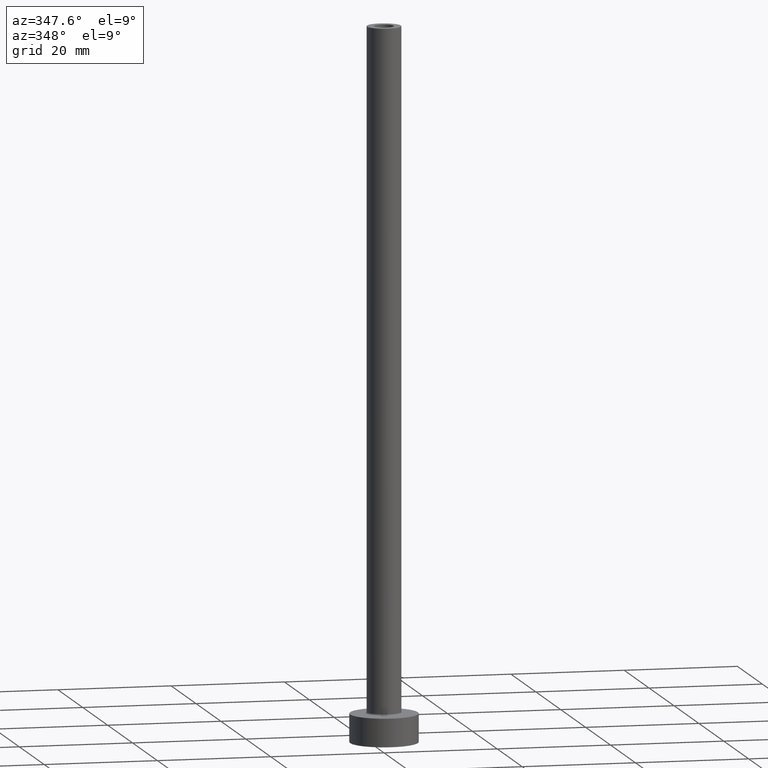
[diagram: clean part render]
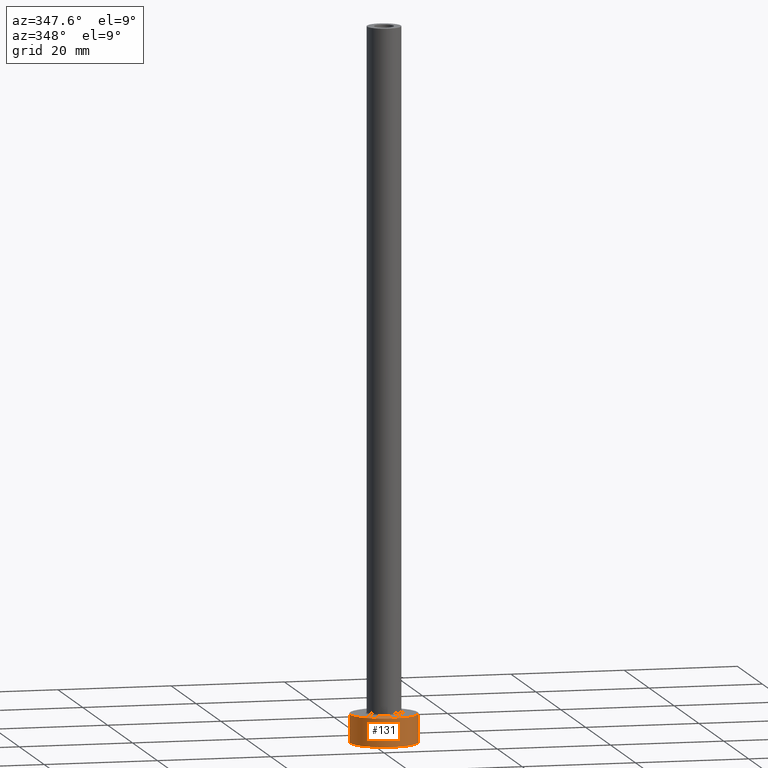
[diagram: same view with one face highlighted and labeled with its STEP entity id]
A machine part, auxiliary view. The second image highlights one B-rep face of the part: STEP entity #131.
In plain terms, the highlighted cylindrical surface (edge-blend (fillet) strip) has radius 6 mm, axis along (-0, -0, -1).
Its self-contained STEP definition (entity closure, byte-faithful):
#24 = AXIS2_PLACEMENT_3D ( 'NONE', #140, #276, #384 ) ;
#28 = CARTESIAN_POINT ( 'NONE',  ( 6.000000000000000888, 7.347880794884120722E-16, 5.000000000000000000 ) ) ;
#37 = VECTOR ( 'NONE', #241, 1000.000000000000000 ) ;
#68 = FACE_OUTER_BOUND ( 'NONE', #278, .T. ) ;
#84 = DIRECTION ( 'NONE',  ( -0.000000000000000000, -0.000000000000000000, -1.000000000000000000 ) ) ;
#87 = CIRCLE ( 'NONE', #24, 6.000000000000000888 ) ;
#92 = DIRECTION ( 'NONE',  ( -0.000000000000000000, -0.000000000000000000, -1.000000000000000000 ) ) ;
#93 = CIRCLE ( 'NONE', #175, 6.000000000000000888 ) ;
#98 = CARTESIAN_POINT ( 'NONE',  ( 0.000000000000000000, 0.000000000000000000, 0.000000000000000000 ) ) ;
#114 = ORIENTED_EDGE ( 'NONE', *, *, #263, .T. ) ;
#116 = VERTEX_POINT ( 'NONE', #238 ) ;
#131 = ADVANCED_FACE ( 'NONE', ( #68 ), #133, .T. ) ;
#133 = CYLINDRICAL_SURFACE ( 'NONE', #455, 6.000000000000000888 ) ;
#135 = VERTEX_POINT ( 'NONE', #136 ) ;
#136 = CARTESIAN_POINT ( 'NONE',  ( 6.000000000000000888, 7.347880794884120722E-16, 0.000000000000000000 ) ) ;
#140 = CARTESIAN_POINT ( 'NONE',  ( 0.000000000000000000, 0.000000000000000000, 5.000000000000000000 ) ) ;
#144 = CARTESIAN_POINT ( 'NONE',  ( -6.000000000000000888, 0.000000000000000000, 5.000000000000000000 ) ) ;
#160 = EDGE_CURVE ( 'NONE', #280, #116, #198, .T. ) ;
#175 = AXIS2_PLACEMENT_3D ( 'NONE', #98, #318, #240 ) ;
#193 = EDGE_CURVE ( 'NONE', #280, #244, #87, .T. ) ;
#196 = LINE ( 'NONE', #411, #265 ) ;
#198 = LINE ( 'NONE', #422, #37 ) ;
#238 = CARTESIAN_POINT ( 'NONE',  ( -6.000000000000000888, 0.000000000000000000, 0.000000000000000000 ) ) ;
#240 = DIRECTION ( 'NONE',  ( 1.000000000000000000, 0.000000000000000000, 0.000000000000000000 ) ) ;
#241 = DIRECTION ( 'NONE',  ( -0.000000000000000000, -0.000000000000000000, -1.000000000000000000 ) ) ;
#244 = VERTEX_POINT ( 'NONE', #28 ) ;
#263 = EDGE_CURVE ( 'NONE', #116, #135, #93, .T. ) ;
#265 = VECTOR ( 'NONE', #84, 1000.000000000000000 ) ;
#276 = DIRECTION ( 'NONE',  ( 0.000000000000000000, 0.000000000000000000, 1.000000000000000000 ) ) ;
#278 = EDGE_LOOP ( 'NONE', ( #362, #333, #317, #114 ) ) ;
#280 = VERTEX_POINT ( 'NONE', #144 ) ;
#317 = ORIENTED_EDGE ( 'NONE', *, *, #160, .T. ) ;
#318 = DIRECTION ( 'NONE',  ( 0.000000000000000000, 0.000000000000000000, 1.000000000000000000 ) ) ;
#333 = ORIENTED_EDGE ( 'NONE', *, *, #193, .F. ) ;
#349 = EDGE_CURVE ( 'NONE', #244, #135, #196, .T. ) ;
#362 = ORIENTED_EDGE ( 'NONE', *, *, #349, .F. ) ;
#384 = DIRECTION ( 'NONE',  ( 1.000000000000000000, 0.000000000000000000, 0.000000000000000000 ) ) ;
#411 = CARTESIAN_POINT ( 'NONE',  ( 6.000000000000000888, 7.347880794884120722E-16, 5.000000000000000000 ) ) ;
#422 = CARTESIAN_POINT ( 'NONE',  ( -6.000000000000000888, 0.000000000000000000, 5.000000000000000000 ) ) ;
#429 = DIRECTION ( 'NONE',  ( -1.000000000000000000, 0.000000000000000000, 0.000000000000000000 ) ) ;
#432 = CARTESIAN_POINT ( 'NONE',  ( 0.000000000000000000, 0.000000000000000000, 5.000000000000000000 ) ) ;
#455 = AXIS2_PLACEMENT_3D ( 'NONE', #432, #92, #429 ) ;